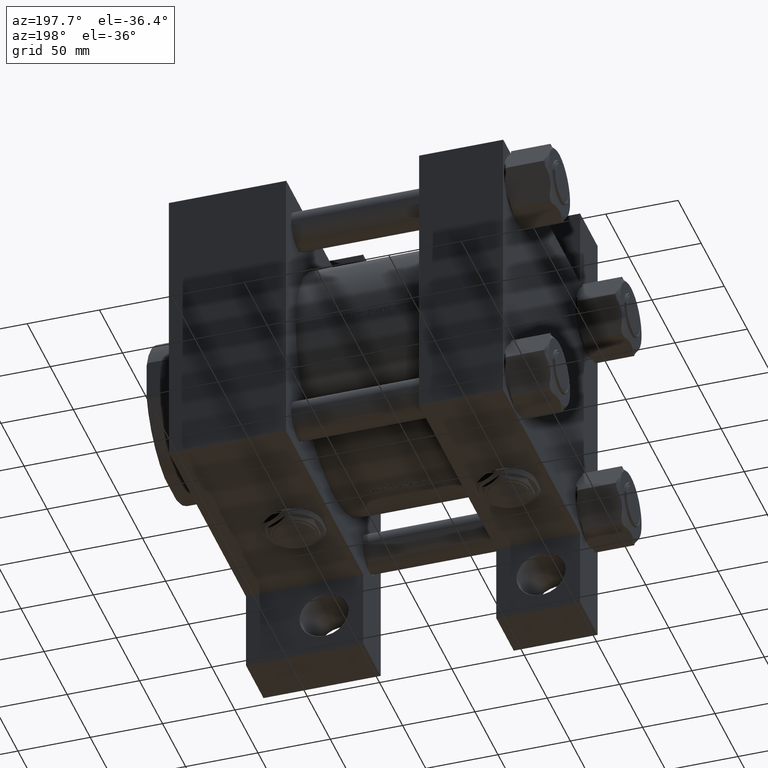
[diagram: clean part render]
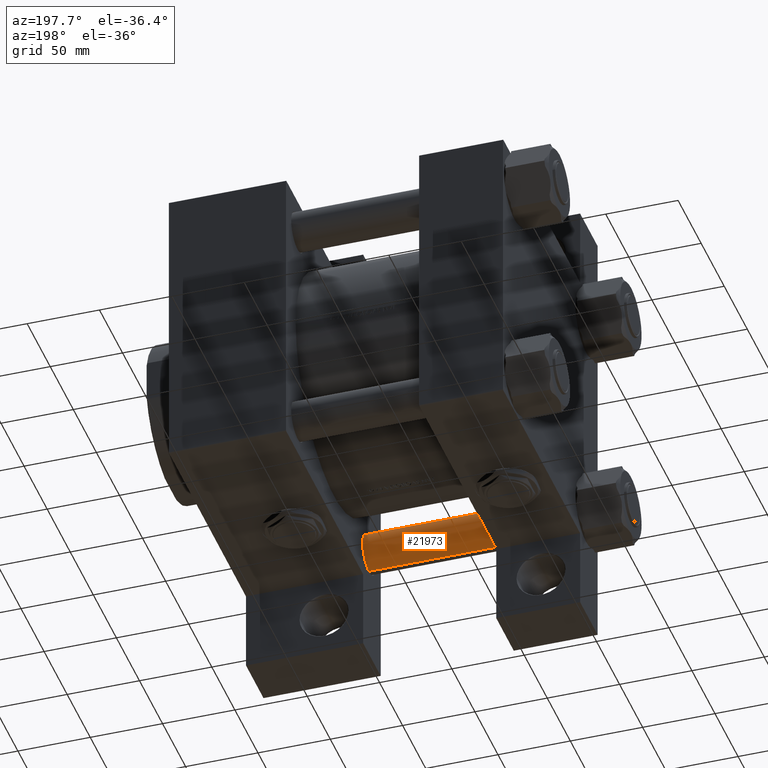
[diagram: same view with one face highlighted and labeled with its STEP entity id]
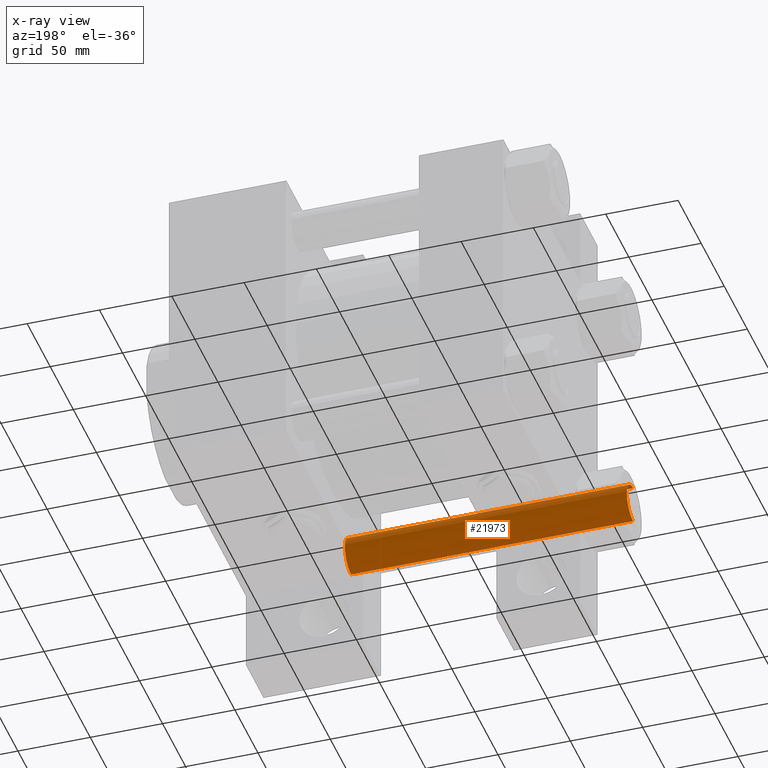
[diagram: x-ray of the same camera — body ghosted, the highlighted face saturated]
A machine part, auxiliary view. The second image highlights one B-rep face of the part: STEP entity #21973.
The next image is the same camera in x-ray: the body ghosted, the highlighted face saturated — about 2% of this face is hidden behind the body in this view.
In plain terms, the highlighted cylindrical surface (edge-blend (fillet) strip) has radius 13.5 mm, axis along (-1, 0, 0).
Its self-contained STEP definition (entity closure, byte-faithful):
#179 = AXIS2_PLACEMENT_3D ( 'NONE', #24375, #5109, #44649 ) ;
#274 = DIRECTION ( 'NONE',  ( -0.000000000000000000, -0.000000000000000000, 1.000000000000000000 ) ) ;
#441 = DIRECTION ( 'NONE',  ( -0.000000000000000000, -0.000000000000000000, -1.000000000000000000 ) ) ;
#1285 = CIRCLE ( 'NONE', #45861, 13.50000000000000000 ) ;
#2971 = VECTOR ( 'NONE', #41482, 1000.000000000000000 ) ;
#3374 = VERTEX_POINT ( 'NONE', #39030 ) ;
#4249 = LINE ( 'NONE', #35183, #9547 ) ;
#4526 = VERTEX_POINT ( 'NONE', #36695 ) ;
#5109 = DIRECTION ( 'NONE',  ( -0.000000000000000000, -0.000000000000000000, -1.000000000000000000 ) ) ;
#8898 = CYLINDRICAL_SURFACE ( 'NONE', #179, 13.50000000000000000 ) ;
#9252 = AXIS2_PLACEMENT_3D ( 'NONE', #39167, #31576, #20147 ) ;
#9547 = VECTOR ( 'NONE', #441, 1000.000000000000000 ) ;
#16102 = ORIENTED_EDGE ( 'NONE', *, *, #33606, .F. ) ;
#17388 = LINE ( 'NONE', #33376, #2971 ) ;
#19062 = ORIENTED_EDGE ( 'NONE', *, *, #28953, .T. ) ;
#20147 = DIRECTION ( 'NONE',  ( 1.000000000000000000, 0.000000000000000000, 0.000000000000000000 ) ) ;
#21973 = ADVANCED_FACE ( 'NONE', ( #29179 ), #8898, .T. ) ;
#22813 = EDGE_LOOP ( 'NONE', ( #16102, #19062, #50021, #43719 ) ) ;
#24375 = CARTESIAN_POINT ( 'NONE',  ( 0.000000000000000000, 0.000000000000000000, 196.0000000000000000 ) ) ;
#26659 = CARTESIAN_POINT ( 'NONE',  ( 13.50000000000000000, 1.653273178848926867E-15, 195.5000000000000284 ) ) ;
#28953 = EDGE_CURVE ( 'NONE', #36458, #48334, #38414, .T. ) ;
#29179 = FACE_OUTER_BOUND ( 'NONE', #22813, .T. ) ;
#31576 = DIRECTION ( 'NONE',  ( 0.000000000000000000, 0.000000000000000000, -1.000000000000000000 ) ) ;
#33376 = CARTESIAN_POINT ( 'NONE',  ( 13.50000000000000000, 1.653273178848926867E-15, 196.0000000000000000 ) ) ;
#33606 = EDGE_CURVE ( 'NONE', #36458, #4526, #17388, .T. ) ;
#34506 = DIRECTION ( 'NONE',  ( 1.000000000000000000, 0.000000000000000000, 0.000000000000000000 ) ) ;
#35183 = CARTESIAN_POINT ( 'NONE',  ( -13.50000000000000000, 0.000000000000000000, 196.0000000000000000 ) ) ;
#35250 = CARTESIAN_POINT ( 'NONE',  ( 0.000000000000000000, 0.000000000000000000, 0.4999999999999726885 ) ) ;
#36458 = VERTEX_POINT ( 'NONE', #26659 ) ;
#36695 = CARTESIAN_POINT ( 'NONE',  ( 13.50000000000000000, 1.653273178848926867E-15, 0.4999999999999726885 ) ) ;
#38414 = CIRCLE ( 'NONE', #9252, 13.50000000000000000 ) ;
#39030 = CARTESIAN_POINT ( 'NONE',  ( -13.50000000000000000, 0.000000000000000000, 0.4999999999999726885 ) ) ;
#39167 = CARTESIAN_POINT ( 'NONE',  ( 0.000000000000000000, 0.000000000000000000, 195.5000000000000284 ) ) ;
#39247 = EDGE_CURVE ( 'NONE', #3374, #4526, #1285, .T. ) ;
#41482 = DIRECTION ( 'NONE',  ( -0.000000000000000000, -0.000000000000000000, -1.000000000000000000 ) ) ;
#41860 = CARTESIAN_POINT ( 'NONE',  ( -13.50000000000000000, 0.000000000000000000, 195.5000000000000284 ) ) ;
#43719 = ORIENTED_EDGE ( 'NONE', *, *, #39247, .T. ) ;
#44649 = DIRECTION ( 'NONE',  ( -1.000000000000000000, 0.000000000000000000, 0.000000000000000000 ) ) ;
#44759 = EDGE_CURVE ( 'NONE', #48334, #3374, #4249, .T. ) ;
#45861 = AXIS2_PLACEMENT_3D ( 'NONE', #35250, #274, #34506 ) ;
#48334 = VERTEX_POINT ( 'NONE', #41860 ) ;
#50021 = ORIENTED_EDGE ( 'NONE', *, *, #44759, .T. ) ;